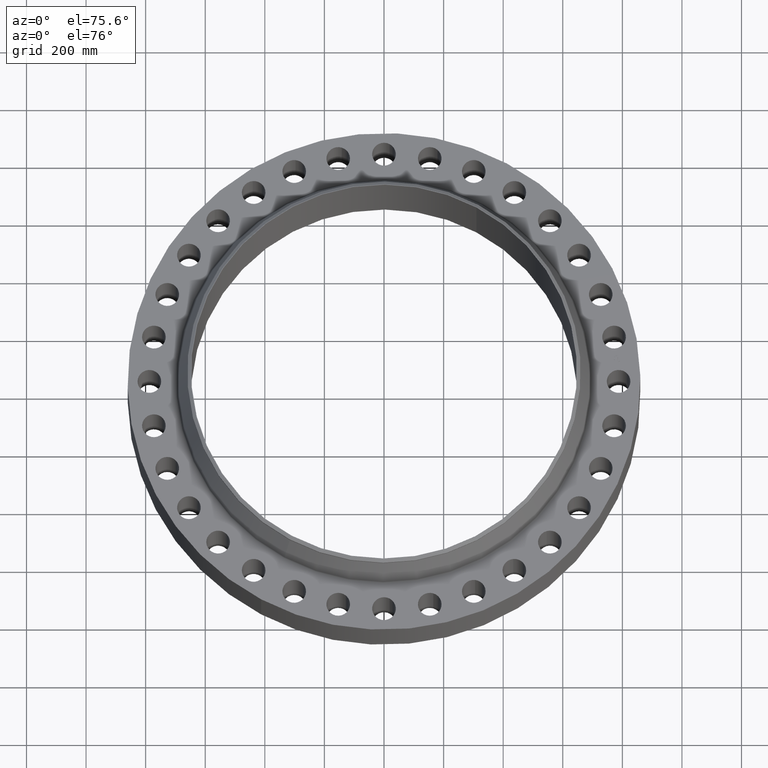
[diagram: clean part render]
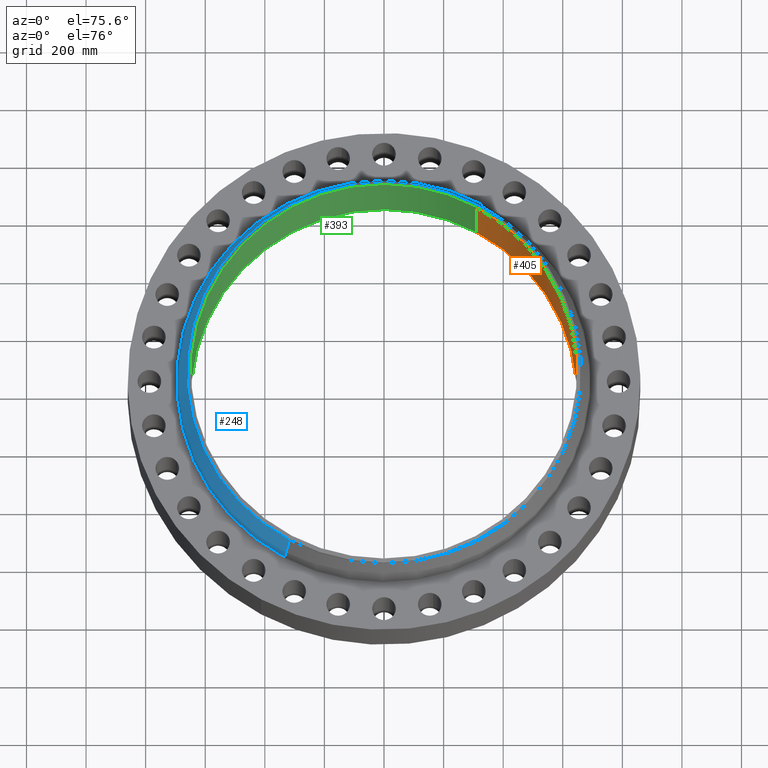
[diagram: same view with three faces highlighted in distinct colors, each labeled with its STEP entity id]
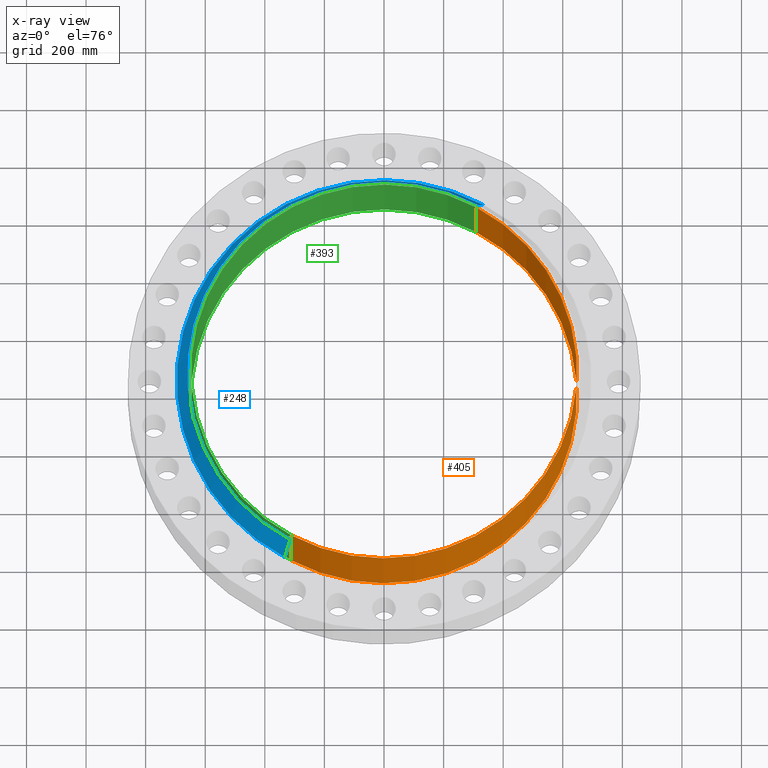
[diagram: x-ray of the same camera — body ghosted, the three highlighted faces saturated]
A machine part, auxiliary view with three faces highlighted in distinct colors.
The next image is the same camera in x-ray (body ghosted, the three faces saturated) — at least one of them is partly hidden behind the body in this view.
Their STEP definitions:

[orange] entity #405 — the highlighted cylindrical surface (partial cylindrical patch) has radius 647.7 mm, axis along (0, 0, -1).
#355=AXIS2_PLACEMENT_3D('Circle Axis2P3D',#353,#354,$) ;
#366=AXIS2_PLACEMENT_3D('Cylinder Axis2P3D',#363,#364,#365) ;
#396=AXIS2_PLACEMENT_3D('Circle Axis2P3D',#394,#395,$) ;
#348=CARTESIAN_POINT('Vertex',(-12.2253512345,-22.3783553283,13.2500000001)) ;
#350=CARTESIAN_POINT('Vertex',(12.2253512345,22.3783553283,13.2500000001)) ;
#353=CARTESIAN_POINT('Axis2P3D Location',(0.,1.1189649382E-015,13.2500000001)) ;
#363=CARTESIAN_POINT('Axis2P3D Location',(0.,0.,6.67500000003)) ;
#368=CARTESIAN_POINT('Line Origine',(-12.2253512345,-22.3783553283,6.62500000003)) ;
#372=CARTESIAN_POINT('Vertex',(-12.2253512345,-22.3783553283,-8.727926518E-014)) ;
#379=CARTESIAN_POINT('Vertex',(12.2253512345,22.3783553283,-8.727926518E-014)) ;
#382=CARTESIAN_POINT('Line Origine',(12.2253512345,22.3783553283,6.62500000003)) ;
#394=CARTESIAN_POINT('Axis2P3D Location',(0.,0.,-8.727926518E-014)) ;
#354=DIRECTION('Axis2P3D Direction',(0.,-0.,-0.0393700787402)) ;
#364=DIRECTION('Axis2P3D Direction',(0.,0.,-0.0393700787402)) ;
#365=DIRECTION('Axis2P3D XDirection',(0.0188750212049,0.0345504945626,0.)) ;
#369=DIRECTION('Vector Direction',(0.,0.,-0.0393700787402)) ;
#383=DIRECTION('Vector Direction',(0.,0.,-0.0393700787402)) ;
#395=DIRECTION('Axis2P3D Direction',(0.,0.,-0.0393700787402)) ;
#370=VECTOR('Line Direction',#369,0.0393700787402) ;
#384=VECTOR('Line Direction',#383,0.0393700787402) ;
#400=ORIENTED_EDGE('',*,*,#386,.T.) ;
#401=ORIENTED_EDGE('',*,*,#398,.T.) ;
#402=ORIENTED_EDGE('',*,*,#374,.F.) ;
#403=ORIENTED_EDGE('',*,*,#357,.F.) ;
#405=ADVANCED_FACE('PartBody',(#404),#367,.F.) ;
#356=CIRCLE('generated circle',#355,25.5000000001) ;
#397=CIRCLE('generated circle',#396,25.5000000001) ;
#367=CYLINDRICAL_SURFACE('generated cylinder',#366,25.5000000001) ;
#357=EDGE_CURVE('',#351,#349,#356,.T.) ;
#374=EDGE_CURVE('',#349,#373,#371,.T.) ;
#386=EDGE_CURVE('',#351,#380,#385,.T.) ;
#398=EDGE_CURVE('',#380,#373,#397,.T.) ;
#399=EDGE_LOOP('',(#400,#401,#402,#403)) ;
#404=FACE_OUTER_BOUND('',#399,.T.) ;
#371=LINE('Line',#368,#370) ;
#385=LINE('Line',#382,#384) ;
#349=VERTEX_POINT('',#348) ;
#351=VERTEX_POINT('',#350) ;
#373=VERTEX_POINT('',#372) ;
#380=VERTEX_POINT('',#379) ;

[blue] entity #248 — the highlighted conical surface has half-angle 17.109 deg.
#196=AXIS2_PLACEMENT_3D('Circle Axis2P3D',#194,#195,$) ;
#209=AXIS2_PLACEMENT_3D('Cone Axis2P3D',#206,#207,#208) ;
#239=AXIS2_PLACEMENT_3D('Circle Axis2P3D',#237,#238,$) ;
#167=CARTESIAN_POINT('Vertex',(13.129396813,24.0331996597,8.1764508874)) ;
#174=CARTESIAN_POINT('Vertex',(-13.129396813,-24.0331996597,8.1764508874)) ;
#194=CARTESIAN_POINT('Axis2P3D Location',(0.,0.,8.1764508874)) ;
#206=CARTESIAN_POINT('Axis2P3D Location',(0.,0.,12.6780739704)) ;
#211=CARTESIAN_POINT('Line Origine',(12.7972304084,23.4251731344,10.4272624289)) ;
#215=CARTESIAN_POINT('Vertex',(12.4650640038,22.8171466092,12.6780739704)) ;
#222=CARTESIAN_POINT('Vertex',(-12.4650640038,-22.8171466092,12.6780739704)) ;
#225=CARTESIAN_POINT('Line Origine',(-12.7972304084,-23.4251731344,10.4272624289)) ;
#237=CARTESIAN_POINT('Axis2P3D Location',(0.,0.,12.6780739704)) ;
#195=DIRECTION('Axis2P3D Direction',(0.,0.,-0.0393700787402)) ;
#207=DIRECTION('Axis2P3D Direction',(0.,0.,-0.0393700787402)) ;
#208=DIRECTION('Axis2P3D XDirection',(-0.0188750212049,-0.0345504945626,0.)) ;
#212=DIRECTION('Vector Direction',(0.00555296424227,0.0101646328646,-0.0376277547411)) ;
#226=DIRECTION('Vector Direction',(-0.00555296424227,-0.0101646328646,-0.0376277547411)) ;
#238=DIRECTION('Axis2P3D Direction',(0.,0.,-0.0393700787402)) ;
#213=VECTOR('Line Direction',#212,0.0393700787402) ;
#227=VECTOR('Line Direction',#226,0.0393700787402) ;
#243=ORIENTED_EDGE('',*,*,#198,.F.) ;
#244=ORIENTED_EDGE('',*,*,#229,.T.) ;
#245=ORIENTED_EDGE('',*,*,#241,.T.) ;
#246=ORIENTED_EDGE('',*,*,#217,.F.) ;
#248=ADVANCED_FACE('PartBody',(#247),#210,.T.) ;
#197=CIRCLE('generated circle',#196,27.3856850664) ;
#240=CIRCLE('generated circle',#239,26.0000000001) ;
#210=CONICAL_SURFACE('Cone',#209,26.0000000001,0.298614652549) ;
#198=EDGE_CURVE('',#175,#168,#197,.T.) ;
#217=EDGE_CURVE('',#168,#216,#214,.F.) ;
#229=EDGE_CURVE('',#175,#223,#228,.F.) ;
#241=EDGE_CURVE('',#223,#216,#240,.T.) ;
#242=EDGE_LOOP('',(#243,#244,#245,#246)) ;
#247=FACE_OUTER_BOUND('',#242,.T.) ;
#214=LINE('Line',#211,#213) ;
#228=LINE('Line',#225,#227) ;
#168=VERTEX_POINT('',#167) ;
#175=VERTEX_POINT('',#174) ;
#216=VERTEX_POINT('',#215) ;
#223=VERTEX_POINT('',#222) ;

[green] entity #393 — the highlighted cylindrical surface (partial cylindrical patch) has radius 647.7 mm, axis along (0, 0, -1).
#346=AXIS2_PLACEMENT_3D('Circle Axis2P3D',#344,#345,$) ;
#366=AXIS2_PLACEMENT_3D('Cylinder Axis2P3D',#363,#364,#365) ;
#377=AXIS2_PLACEMENT_3D('Circle Axis2P3D',#375,#376,$) ;
#344=CARTESIAN_POINT('Axis2P3D Location',(-6.71378962923E-015,-1.1189649382E-015,13.2500000001)) ;
#348=CARTESIAN_POINT('Vertex',(-12.2253512345,-22.3783553283,13.2500000001)) ;
#350=CARTESIAN_POINT('Vertex',(12.2253512345,22.3783553283,13.2500000001)) ;
#363=CARTESIAN_POINT('Axis2P3D Location',(0.,0.,6.67500000003)) ;
#368=CARTESIAN_POINT('Line Origine',(-12.2253512345,-22.3783553283,6.62500000003)) ;
#372=CARTESIAN_POINT('Vertex',(-12.2253512345,-22.3783553283,-8.727926518E-014)) ;
#375=CARTESIAN_POINT('Axis2P3D Location',(0.,0.,-8.727926518E-014)) ;
#379=CARTESIAN_POINT('Vertex',(12.2253512345,22.3783553283,-8.727926518E-014)) ;
#382=CARTESIAN_POINT('Line Origine',(12.2253512345,22.3783553283,6.62500000003)) ;
#345=DIRECTION('Axis2P3D Direction',(0.,-0.,-0.0393700787402)) ;
#364=DIRECTION('Axis2P3D Direction',(0.,0.,-0.0393700787402)) ;
#365=DIRECTION('Axis2P3D XDirection',(0.0188750212049,0.0345504945626,0.)) ;
#369=DIRECTION('Vector Direction',(0.,0.,-0.0393700787402)) ;
#376=DIRECTION('Axis2P3D Direction',(0.,0.,-0.0393700787402)) ;
#383=DIRECTION('Vector Direction',(0.,0.,-0.0393700787402)) ;
#370=VECTOR('Line Direction',#369,0.0393700787402) ;
#384=VECTOR('Line Direction',#383,0.0393700787402) ;
#388=ORIENTED_EDGE('',*,*,#374,.T.) ;
#389=ORIENTED_EDGE('',*,*,#381,.T.) ;
#390=ORIENTED_EDGE('',*,*,#386,.F.) ;
#391=ORIENTED_EDGE('',*,*,#352,.F.) ;
#393=ADVANCED_FACE('PartBody',(#392),#367,.F.) ;
#347=CIRCLE('generated circle',#346,25.5000000001) ;
#378=CIRCLE('generated circle',#377,25.5000000001) ;
#367=CYLINDRICAL_SURFACE('generated cylinder',#366,25.5000000001) ;
#352=EDGE_CURVE('',#349,#351,#347,.T.) ;
#374=EDGE_CURVE('',#349,#373,#371,.T.) ;
#381=EDGE_CURVE('',#373,#380,#378,.T.) ;
#386=EDGE_CURVE('',#351,#380,#385,.T.) ;
#387=EDGE_LOOP('',(#388,#389,#390,#391)) ;
#392=FACE_OUTER_BOUND('',#387,.T.) ;
#371=LINE('Line',#368,#370) ;
#385=LINE('Line',#382,#384) ;
#349=VERTEX_POINT('',#348) ;
#351=VERTEX_POINT('',#350) ;
#373=VERTEX_POINT('',#372) ;
#380=VERTEX_POINT('',#379) ;